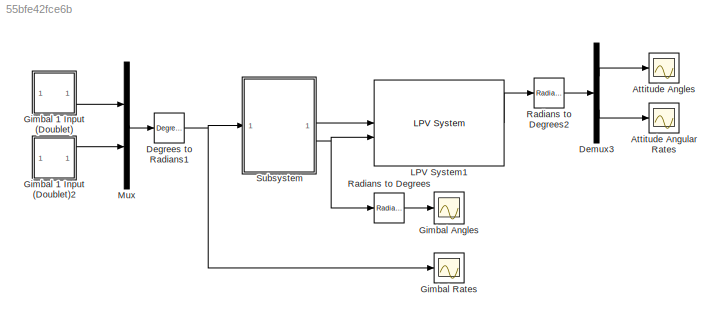
MODEL slx_55bfe42fce6b
KIND model
CONFIG AbsTol = auto
CONFIG EnableMultiTasking = off
CONFIG FixedStep = auto
CONFIG MaxStep = auto
CONFIG MinStep = auto
CONFIG RelTol = 1e-3
CONFIG SampleTimeConstraint = Unconstrained
CONFIG SolverName = VariableStepAuto
CONFIG StartTime = 0.0
CONFIG StopTime = tf
BLOCK [Scope] Attitude Angles
  Floating = off
  NumInputPorts = 1
  ScopeSpecificationString = Simulink.scopes.TimeScopeBlockCfg('CurrentConfiguration', extmgr.ConfigurationSet(extmgr.Configuration('Core','General UI',true),extmgr.Configuration('Core','Source UI',true),extmgr.Configuration('Sources','WiredSimulink',true,'DataLoggingVariableName','Attitude_Angles','DataLogging',true,'DataLoggingSaveFormat','StructureWithTime'),extmgr.Configuration('Visuals','Time Domain',true,'SerializedDisp...<+1633ch>
BLOCK [Scope] Attitude Angular Rates
  Floating = off
  NumInputPorts = 1
  ScopeSpecificationString = Simulink.scopes.TimeScopeBlockCfg('CurrentConfiguration', extmgr.ConfigurationSet(extmgr.Configuration('Core','General UI',true),extmgr.Configuration('Core','Source UI',true),extmgr.Configuration('Sources','WiredSimulink',true,'DataLoggingVariableName','Attitude_Angles_Rates','DataLogging',true,'DataLoggingSaveFormat','StructureWithTime'),extmgr.Configuration('Visuals','Time Domain',true,'Serializ...<+1639ch>
BLOCK [Reference] Degrees to Radians1  REF=simulink_extras/Transformations/Degrees to
Radians
  SourceBlock = simulink_extras/Transformations/Degrees to\nRadians
  SourceType = DegreesToRadians
BLOCK [Demux] Demux3
  Outputs = 2
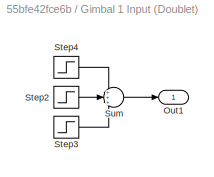
BLOCK [SubSystem] Gimbal 1 Input (Doublet)
BLOCK [Outport] Gimbal 1 Input (Doublet)/Out1
BLOCK [Step] Gimbal 1 Input (Doublet)/Step2
  After = -1
  SampleTime = 0
  Time = 5
BLOCK [Step] Gimbal 1 Input (Doublet)/Step3
  After = 0.5
  SampleTime = 0
  Time = 9
BLOCK [Step] Gimbal 1 Input (Doublet)/Step4
  After = 0.5
  SampleTime = 0
BLOCK [Sum] Gimbal 1 Input (Doublet)/Sum
  Inputs = +++
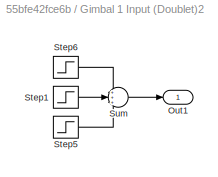
BLOCK [SubSystem] Gimbal 1 Input (Doublet)2
BLOCK [Outport] Gimbal 1 Input (Doublet)2/Out1
BLOCK [Step] Gimbal 1 Input (Doublet)2/Step1
  After = -1
  SampleTime = 0
  Time = 5
BLOCK [Step] Gimbal 1 Input (Doublet)2/Step5
  After = 0.5
  SampleTime = 0
  Time = 9
BLOCK [Step] Gimbal 1 Input (Doublet)2/Step6
  After = 0.5
  SampleTime = 0
BLOCK [Sum] Gimbal 1 Input (Doublet)2/Sum
  Inputs = +++
BLOCK [Scope] Gimbal Angles
  Floating = off
  NumInputPorts = 1
  ScopeSpecificationString = Simulink.scopes.TimeScopeBlockCfg('CurrentConfiguration', extmgr.ConfigurationSet(extmgr.Configuration('Core','General UI',true),extmgr.Configuration('Core','Source UI',true),extmgr.Configuration('Sources','WiredSimulink',true,'DataLogging',true,'DataLoggingVariableName','gamma_output','DataLoggingSaveFormat','StructureWithTime'),extmgr.Configuration('Visuals','Time Domain',true,'SerializedDisplay...<+1679ch>
BLOCK [Scope] Gimbal Rates
  Floating = off
  NumInputPorts = 1
  ScopeSpecificationString = Simulink.scopes.TimeScopeBlockCfg('CurrentConfiguration', extmgr.ConfigurationSet(extmgr.Configuration('Core','General UI',true),extmgr.Configuration('Core','Source UI',true),extmgr.Configuration('Sources','WiredSimulink',true,'DataLoggingVariableName','gamma_output_rates','DataLogging',true,'DataLoggingSaveFormat','StructureWithTime'),extmgr.Configuration('Visuals','Time Domain',true,'SerializedD...<+1674ch>
BLOCK [Reference] LPV System1  REF=cstblocks/Linear Parameter Varying/LPV System
  SourceBlock = cstblocks/Linear Parameter Varying/LPV System
  SourceType = LPV Block
BLOCK [Mux] Mux
  DisplayOption = bar
  Inputs = 2
BLOCK [Reference] Radians to Degrees  REF=simulink_extras/Transformations/Radians
to Degrees
  SourceBlock = simulink_extras/Transformations/Radians\nto Degrees
  SourceType = RadiansToDegrees
BLOCK [Reference] Radians to Degrees2  REF=simulink_extras/Transformations/Radians
to Degrees
  SourceBlock = simulink_extras/Transformations/Radians\nto Degrees
  SourceType = RadiansToDegrees
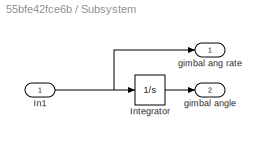
BLOCK [SubSystem] Subsystem
BLOCK [Inport] Subsystem/In1
BLOCK [Integrator] Subsystem/Integrator
  InitialCondition = [gamma1_initial,gamma2_initial]
BLOCK [Outport] Subsystem/gimbal ang rate
BLOCK [Outport] Subsystem/gimbal angle
  Port = 2
NET Degrees to Radians1:1 -> Gimbal Rates:1, Subsystem:1
LINE Demux3:1 -> Attitude Angles:1
LINE Demux3:2 -> Attitude Angular Rates:1
LINE Gimbal 1 Input (Doublet)/Step2:1 -> Gimbal 1 Input (Doublet)/Sum:2
LINE Gimbal 1 Input (Doublet)/Step3:1 -> Gimbal 1 Input (Doublet)/Sum:3
LINE Gimbal 1 Input (Doublet)/Step4:1 -> Gimbal 1 Input (Doublet)/Sum:1
LINE Gimbal 1 Input (Doublet)/Sum:1 -> Gimbal 1 Input (Doublet)/Out1:1
LINE Gimbal 1 Input (Doublet)2/Step1:1 -> Gimbal 1 Input (Doublet)2/Sum:2
LINE Gimbal 1 Input (Doublet)2/Step5:1 -> Gimbal 1 Input (Doublet)2/Sum:3
LINE Gimbal 1 Input (Doublet)2/Step6:1 -> Gimbal 1 Input (Doublet)2/Sum:1
LINE Gimbal 1 Input (Doublet)2/Sum:1 -> Gimbal 1 Input (Doublet)2/Out1:1
LINE Gimbal 1 Input (Doublet)2:1 -> Mux:2
LINE Gimbal 1 Input (Doublet):1 -> Mux:1
LINE LPV System1:1 -> Radians to Degrees2:1
LINE Mux:1 -> Degrees to Radians1:1
LINE Radians to Degrees2:1 -> Demux3:1
LINE Radians to Degrees:1 -> Gimbal Angles:1
NET Subsystem/In1:1 -> Subsystem/Integrator:1, Subsystem/gimbal ang rate:1
LINE Subsystem/Integrator:1 -> Subsystem/gimbal angle:1
LINE Subsystem:1 -> LPV System1:1
NET Subsystem:2 -> LPV System1:2, Radians to Degrees:1
note: NET lines group one-source signal fan-out (src -> all destinations, sorted); 1:1 wires keep LINE
